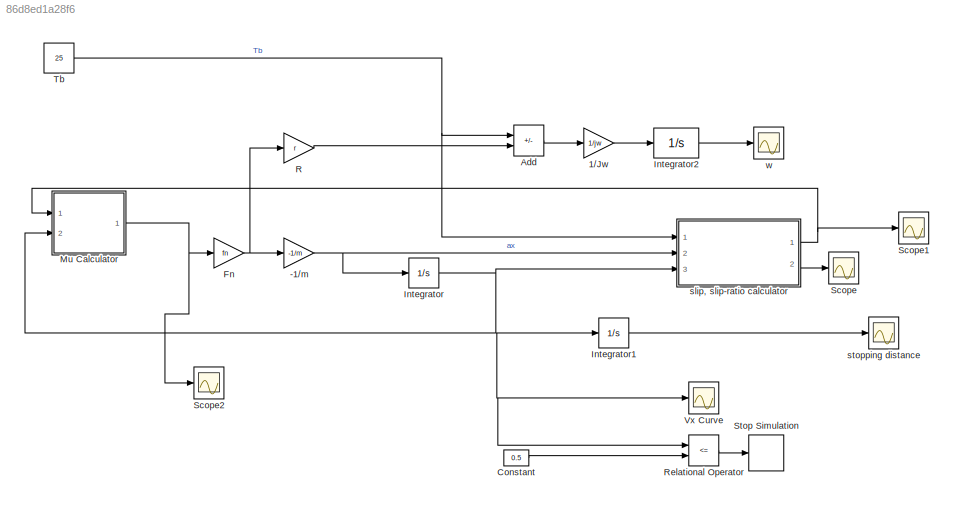
MODEL slx_86d8ed1a28f6
KIND model
CONFIG AbsTol = auto
CONFIG EnableMultiTasking = off
CONFIG FixedStep = auto
CONFIG MaxStep = auto
CONFIG MinStep = auto
CONFIG RelTol = 1e-3
CONFIG SampleTimeConstraint = Unconstrained
CONFIG SolverName = VariableStepAuto
CONFIG StartTime = 0.0
CONFIG StopTime = 1
BLOCK [Gain] -1//m
  Gain = -1/m
BLOCK [Gain] 1//Jw
  Gain = 1/jw
BLOCK [Sum] Add
  IconShape = rectangular
  Inputs = -+
  Ports = [2, 1]
BLOCK [Constant] Constant
  Value = 0.5
BLOCK [Gain] Fn
  Gain = fn
BLOCK [Integrator] Integrator
  InitialCondition = 27.78
  Ports = [1, 1]
BLOCK [Integrator] Integrator1
  Ports = [1, 1]
BLOCK [Integrator] Integrator2
  InitialCondition = 84.18
  Ports = [1, 1]
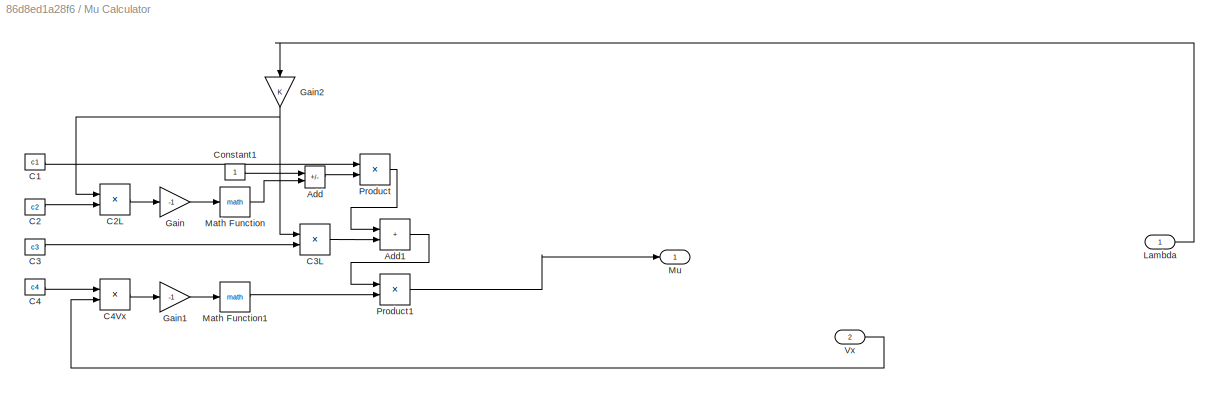
BLOCK [SubSystem] Mu Calculator
  Ports = [2, 1]
  RequestExecContextInheritance = off
BLOCK [Sum] Mu Calculator/Add
  IconShape = rectangular
  Inputs = +-
  Ports = [2, 1]
BLOCK [Sum] Mu Calculator/Add1
  IconShape = rectangular
  Ports = [2, 1]
BLOCK [Constant] Mu Calculator/C1
  Value = c1
BLOCK [Constant] Mu Calculator/C2
  Value = c2
BLOCK [Product] Mu Calculator/C2L
  Ports = [2, 1]
BLOCK [Constant] Mu Calculator/C3
  Value = c3
BLOCK [Product] Mu Calculator/C3L
  Ports = [2, 1]
BLOCK [Constant] Mu Calculator/C4
  Value = c4
BLOCK [Product] Mu Calculator/C4Vx
  Ports = [2, 1]
BLOCK [Constant] Mu Calculator/Constant1
BLOCK [Gain] Mu Calculator/Gain
  Gain = -1
BLOCK [Gain] Mu Calculator/Gain1
  Gain = -1
BLOCK [Gain] Mu Calculator/Gain2
  NameLocation = left
BLOCK [Inport] Mu Calculator/Lambda
BLOCK [Math] Mu Calculator/Math Function
  Ports = [1, 1]
BLOCK [Math] Mu Calculator/Math Function1
  Ports = [1, 1]
BLOCK [Outport] Mu Calculator/Mu
BLOCK [Product] Mu Calculator/Product
  Ports = [2, 1]
BLOCK [Product] Mu Calculator/Product1
  Ports = [2, 1]
BLOCK [Inport] Mu Calculator/Vx
  Port = 2
BLOCK [Gain] R
  Gain = r
BLOCK [RelationalOperator] Relational Operator
  InputSameDT = off
  Operator = <=
  OutDataTypeStr = boolean
  Ports = [2, 1]
  RndMeth = Simplest
BLOCK [Scope] Scope
  Floating = off
  NumInputPorts = 1
  Ports = [1]
  ScopeSpecificationString = Simulink.scopes.TimeScopeBlockCfg('CurrentConfiguration', extmgr.ConfigurationSet(extmgr.Configuration('Core','General UI',true),extmgr.Configuration('Core','Source UI',true),extmgr.Configuration('Sources','WiredSimulink',true,'DataLoggingVariableName','ScopeData3'),extmgr.Configuration('Visuals','Time Domain',true,'SerializedDisplays',{struct('MinYLimReal','-0.00231406','MaxYLimReal','-0.00231363...<+1437ch>
BLOCK [Scope] Scope1
  Floating = off
  NumInputPorts = 1
  Ports = [1]
  ScopeSpecificationString = Simulink.scopes.TimeScopeBlockCfg('CurrentConfiguration', extmgr.ConfigurationSet(extmgr.Configuration('Core','General UI',true),extmgr.Configuration('Core','Source UI',true),extmgr.Configuration('Sources','WiredSimulink',true,'DataLoggingVariableName','ScopeData4'),extmgr.Configuration('Visuals','Time Domain',true,'SerializedDisplays',{struct('MinYLimReal','0.4974','MaxYLimReal','0.50029','YLabel...<+1382ch>
BLOCK [Scope] Scope2
  Floating = off
  NumInputPorts = 1
  Ports = [1]
  ScopeSpecificationString = Simulink.scopes.TimeScopeBlockCfg('CurrentConfiguration', extmgr.ConfigurationSet(extmgr.Configuration('Core','General UI',true),extmgr.Configuration('Core','Source UI',true),extmgr.Configuration('Sources','WiredSimulink',true,'DataLoggingVariableName','ScopeData1'),extmgr.Configuration('Visuals','Time Domain',true,'SerializedDisplays',{struct('MinYLimReal','0.000160719','MaxYLimReal','0.000160772...<+1458ch>
BLOCK [Stop] Stop Simulation
BLOCK [Constant] Tb
  Value = 25
BLOCK [Scope] Vx Curve
  Floating = off
  NumInputPorts = 1
  Ports = [1]
  ScopeSpecificationString = Simulink.scopes.TimeScopeBlockCfg('CurrentConfiguration', extmgr.ConfigurationSet(extmgr.Configuration('Core','General UI',true),extmgr.Configuration('Core','Source UI',true),extmgr.Configuration('Sources','WiredSimulink',true,'DataLoggingVariableName','ScopeData1'),extmgr.Configuration('Visuals','Time Domain',true,'SerializedDisplays',{struct('MinYLimReal','27.77823','MaxYLimReal','27.7802','YLab...<+1371ch>
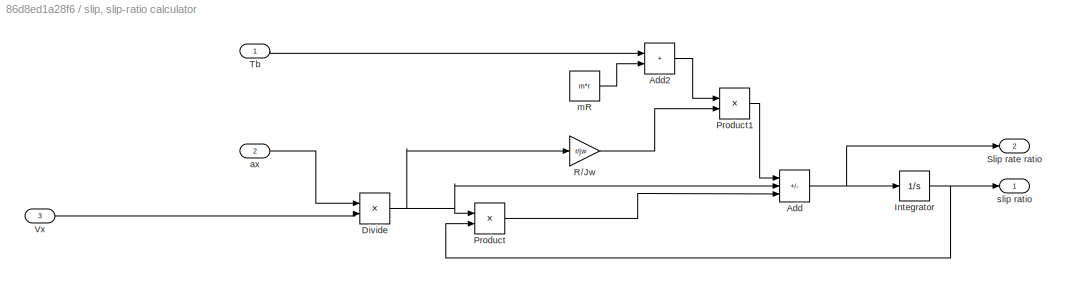
BLOCK [SubSystem] slip, slip-ratio calculator
  Ports = [3, 2]
  RequestExecContextInheritance = off
  ShowPortLabels = FromPortBlockName
BLOCK [Sum] slip, slip-ratio calculator/Add
  IconShape = rectangular
  Inputs = ++-
  Ports = [3, 1]
BLOCK [Sum] slip, slip-ratio calculator/Add2
  IconShape = rectangular
  Ports = [2, 1]
BLOCK [Product] slip, slip-ratio calculator/Divide
  Inputs = */
  Ports = [2, 1]
BLOCK [Integrator] slip, slip-ratio calculator/Integrator
  InitialCondition = 0.5
  Ports = [1, 1]
BLOCK [Product] slip, slip-ratio calculator/Product
  Ports = [2, 1]
BLOCK [Product] slip, slip-ratio calculator/Product1
  Ports = [2, 1]
BLOCK [Gain] slip, slip-ratio calculator/R//Jw
  Gain = r/jw
BLOCK [Outport] slip, slip-ratio calculator/Slip rate ratio
  Port = 2
BLOCK [Inport] slip, slip-ratio calculator/Tb
BLOCK [Inport] slip, slip-ratio calculator/Vx
  Port = 3
BLOCK [Inport] slip, slip-ratio calculator/ax
  Port = 2
BLOCK [Constant] slip, slip-ratio calculator/mR
  Value = m*r
BLOCK [Outport] slip, slip-ratio calculator/slip ratio
BLOCK [Scope] stopping distance
  Floating = off
  NumInputPorts = 1
  Ports = [1]
  ScopeSpecificationString = Simulink.scopes.TimeScopeBlockCfg('CurrentConfiguration', extmgr.ConfigurationSet(extmgr.Configuration('Core','General UI',true),extmgr.Configuration('Core','Source UI',true),extmgr.Configuration('Sources','WiredSimulink',true),extmgr.Configuration('Visuals','Time Domain',true,'SerializedDisplays',{struct('MinYLimReal','5.64351','MaxYLimReal','28.56121','YLabelReal','','MinYLimMag','5.64351','MaxY...<+1375ch>
BLOCK [Scope] w
  Floating = off
  NumInputPorts = 1
  Ports = [1]
  ScopeSpecificationString = Simulink.scopes.TimeScopeBlockCfg('CurrentConfiguration', extmgr.ConfigurationSet(extmgr.Configuration('Core','General UI',true),extmgr.Configuration('Core','Source UI',true),extmgr.Configuration('Sources','WiredSimulink',true,'DataLoggingVariableName','ScopeData2'),extmgr.Configuration('Visuals','Time Domain',true,'SerializedDisplays',{struct('MinYLimReal','-1.00000','MaxYLimReal','1.00000','YLab...<+1370ch>
NET -1//m:1 -> Integrator:1, slip, slip-ratio calculator:2
LINE 1//Jw:1 -> Integrator2:1
LINE Add:1 -> 1//Jw:1
LINE Constant:1 -> Relational Operator:2
NET Fn:1 -> -1//m:1, R:1
LINE Integrator1:1 -> stopping distance:1
LINE Integrator2:1 -> w:1
NET Integrator:1 -> Integrator1:1, Mu Calculator:2, Relational Operator:1, Vx Curve:1, slip, slip-ratio calculator:3
LINE Mu Calculator/Add1:1 -> Mu Calculator/Product1:1
LINE Mu Calculator/Add:1 -> Mu Calculator/Product:2
LINE Mu Calculator/C1:1 -> Mu Calculator/Product:1
LINE Mu Calculator/C2:1 -> Mu Calculator/C2L:2
LINE Mu Calculator/C2L:1 -> Mu Calculator/Gain:1
LINE Mu Calculator/C3:1 -> Mu Calculator/C3L:2
LINE Mu Calculator/C3L:1 -> Mu Calculator/Add1:2
LINE Mu Calculator/C4:1 -> Mu Calculator/C4Vx:1
LINE Mu Calculator/C4Vx:1 -> Mu Calculator/Gain1:1
LINE Mu Calculator/Constant1:1 -> Mu Calculator/Add:1
LINE Mu Calculator/Gain1:1 -> Mu Calculator/Math Function1:1
NET Mu Calculator/Gain2:1 -> Mu Calculator/C2L:1, Mu Calculator/C3L:1
LINE Mu Calculator/Gain:1 -> Mu Calculator/Math Function:1
LINE Mu Calculator/Lambda:1 -> Mu Calculator/Gain2:1
LINE Mu Calculator/Math Function1:1 -> Mu Calculator/Product1:2
LINE Mu Calculator/Math Function:1 -> Mu Calculator/Add:2
LINE Mu Calculator/Product1:1 -> Mu Calculator/Mu:1
LINE Mu Calculator/Product:1 -> Mu Calculator/Add1:1
LINE Mu Calculator/Vx:1 -> Mu Calculator/C4Vx:2
NET Mu Calculator:1 -> Fn:1, Scope2:1
LINE R:1 -> Add:2
LINE Relational Operator:1 -> Stop Simulation:1
NET Tb:1 -> Add:1, slip, slip-ratio calculator:1
LINE slip, slip-ratio calculator/Add2:1 -> slip, slip-ratio calculator/Product1:1
NET slip, slip-ratio calculator/Add:1 -> slip, slip-ratio calculator/Integrator:1, slip, slip-ratio calculator/Slip rate ratio:1
NET slip, slip-ratio calculator/Divide:1 -> slip, slip-ratio calculator/Add:2, slip, slip-ratio calculator/Product:1, slip, slip-ratio calculator/R//Jw:1
NET slip, slip-ratio calculator/Integrator:1 -> slip, slip-ratio calculator/Product:2, slip, slip-ratio calculator/slip ratio:1
LINE slip, slip-ratio calculator/Product1:1 -> slip, slip-ratio calculator/Add:1
LINE slip, slip-ratio calculator/Product:1 -> slip, slip-ratio calculator/Add:3
LINE slip, slip-ratio calculator/R//Jw:1 -> slip, slip-ratio calculator/Product1:2
LINE slip, slip-ratio calculator/Tb:1 -> slip, slip-ratio calculator/Add2:1
LINE slip, slip-ratio calculator/Vx:1 -> slip, slip-ratio calculator/Divide:2
LINE slip, slip-ratio calculator/ax:1 -> slip, slip-ratio calculator/Divide:1
LINE slip, slip-ratio calculator/mR:1 -> slip, slip-ratio calculator/Add2:2
NET slip, slip-ratio calculator:1 -> Mu Calculator:1, Scope1:1
LINE slip, slip-ratio calculator:2 -> Scope:1
note: NET lines group one-source signal fan-out (src -> all destinations, sorted); 1:1 wires keep LINE
